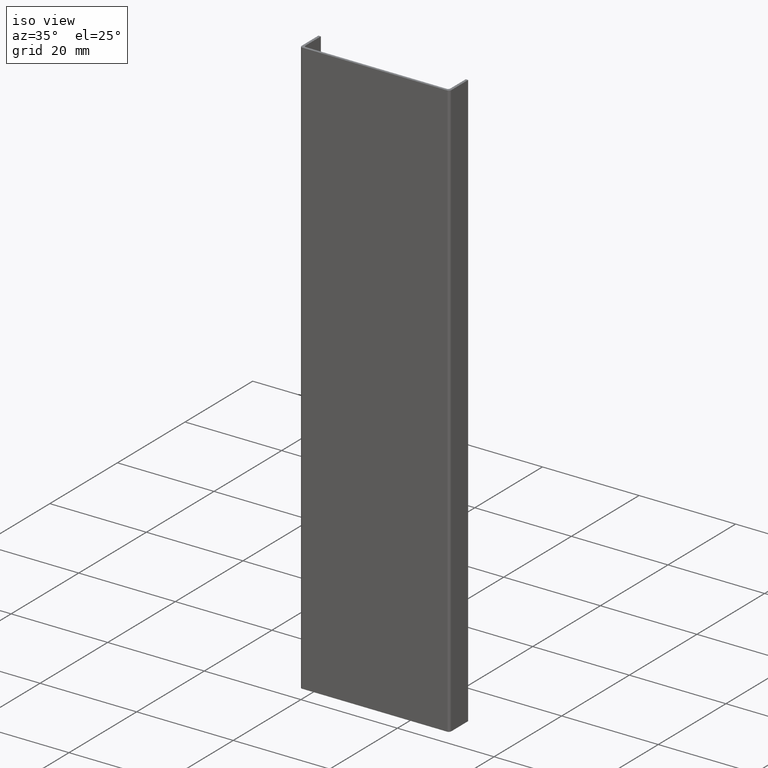
[diagram: clean part render]
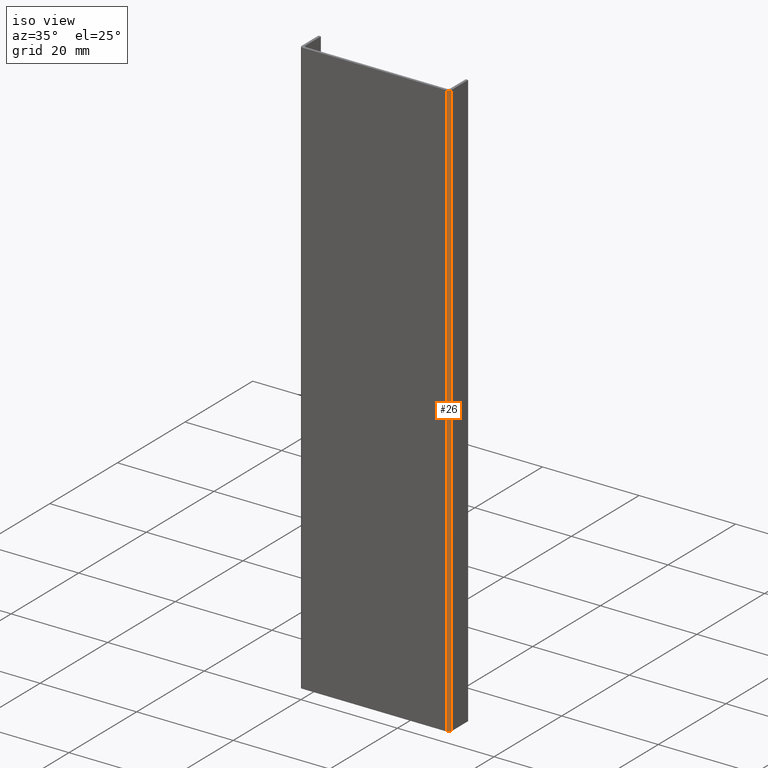
[diagram: same view with one face highlighted and labeled with its STEP entity id]
A machine part, iso view. The second image highlights one B-rep face of the part: STEP entity #26.
In plain terms, the highlighted cylindrical surface (edge-blend (fillet) strip) has radius 0.5 mm, axis along (-0, -0, -1).
Its self-contained STEP definition (entity closure, byte-faithful):
#12 = EDGE_CURVE ( 'NONE', #241, #264, #79, .T. ) ;
#26 = ADVANCED_FACE ( 'NONE', ( #349 ), #390, .T. ) ;
#29 = EDGE_CURVE ( 'NONE', #290, #241, #369, .T. ) ;
#39 = EDGE_CURVE ( 'NONE', #275, #264, #409, .T. ) ;
#58 = EDGE_CURVE ( 'NONE', #290, #275, #141, .T. ) ;
#79 = CIRCLE ( 'NONE', #84, 0.5000000000000038900 ) ;
#84 = AXIS2_PLACEMENT_3D ( 'NONE', #312, #331, #340 ) ;
#88 = AXIS2_PLACEMENT_3D ( 'NONE', #508, #489, #477 ) ;
#89 = VECTOR ( 'NONE', #411, 1000.000000000000000 ) ;
#114 = VECTOR ( 'NONE', #439, 1000.000000000000000 ) ;
#126 = AXIS2_PLACEMENT_3D ( 'NONE', #362, #364, #365 ) ;
#141 = CIRCLE ( 'NONE', #88, 0.5000000000000038900 ) ;
#172 = EDGE_LOOP ( 'NONE', ( #181, #218, #191, #217 ) ) ;
#181 = ORIENTED_EDGE ( 'NONE', *, *, #12, .T. ) ;
#191 = ORIENTED_EDGE ( 'NONE', *, *, #58, .F. ) ;
#217 = ORIENTED_EDGE ( 'NONE', *, *, #29, .T. ) ;
#218 = ORIENTED_EDGE ( 'NONE', *, *, #39, .F. ) ;
#241 = VERTEX_POINT ( 'NONE', #487 ) ;
#264 = VERTEX_POINT ( 'NONE', #488 ) ;
#275 = VERTEX_POINT ( 'NONE', #546 ) ;
#290 = VERTEX_POINT ( 'NONE', #510 ) ;
#312 = CARTESIAN_POINT ( 'NONE',  ( 30.00004224579479500, 0.9098366121500830500, 0.0000000000000000000 ) ) ;
#331 = DIRECTION ( 'NONE',  ( 0.0000000000000000000, 0.0000000000000000000, 1.000000000000000000 ) ) ;
#340 = DIRECTION ( 'NONE',  ( 1.000000000000000000, 0.0000000000000000000, 0.0000000000000000000 ) ) ;
#349 = FACE_OUTER_BOUND ( 'NONE', #172, .T. ) ;
#362 = CARTESIAN_POINT ( 'NONE',  ( 30.00004224579479500, 0.9098366121500830500, 120.0000000000000000 ) ) ;
#364 = DIRECTION ( 'NONE',  ( -0.0000000000000000000, -0.0000000000000000000, -1.000000000000000000 ) ) ;
#365 = DIRECTION ( 'NONE',  ( -1.000000000000000000, 0.0000000000000000000, 0.0000000000000000000 ) ) ;
#369 = LINE ( 'NONE', #378, #89 ) ;
#378 = CARTESIAN_POINT ( 'NONE',  ( 29.99999989237122800, 0.4098366139438910900, 120.0000000000000000 ) ) ;
#390 = CYLINDRICAL_SURFACE ( 'NONE', #126, 0.5000000000000038900 ) ;
#409 = LINE ( 'NONE', #423, #114 ) ;
#411 = DIRECTION ( 'NONE',  ( -0.0000000000000000000, -0.0000000000000000000, -1.000000000000000000 ) ) ;
#423 = CARTESIAN_POINT ( 'NONE',  ( 30.50004224400101200, 0.9097942587265009900, 120.0000000000000000 ) ) ;
#439 = DIRECTION ( 'NONE',  ( -0.0000000000000000000, -0.0000000000000000000, -1.000000000000000000 ) ) ;
#477 = DIRECTION ( 'NONE',  ( 1.000000000000000000, 0.0000000000000000000, 0.0000000000000000000 ) ) ;
#487 = CARTESIAN_POINT ( 'NONE',  ( 29.99999989237122800, 0.4098366139438910900, 0.0000000000000000000 ) ) ;
#488 = CARTESIAN_POINT ( 'NONE',  ( 30.50004224400101200, 0.9097942587265009900, 0.0000000000000000000 ) ) ;
#489 = DIRECTION ( 'NONE',  ( 0.0000000000000000000, 0.0000000000000000000, 1.000000000000000000 ) ) ;
#508 = CARTESIAN_POINT ( 'NONE',  ( 30.00004224579479500, 0.9098366121500830500, 120.0000000000000000 ) ) ;
#510 = CARTESIAN_POINT ( 'NONE',  ( 29.99999989237122800, 0.4098366139438910900, 120.0000000000000000 ) ) ;
#546 = CARTESIAN_POINT ( 'NONE',  ( 30.50004224400101200, 0.9097942587265009900, 120.0000000000000000 ) ) ;